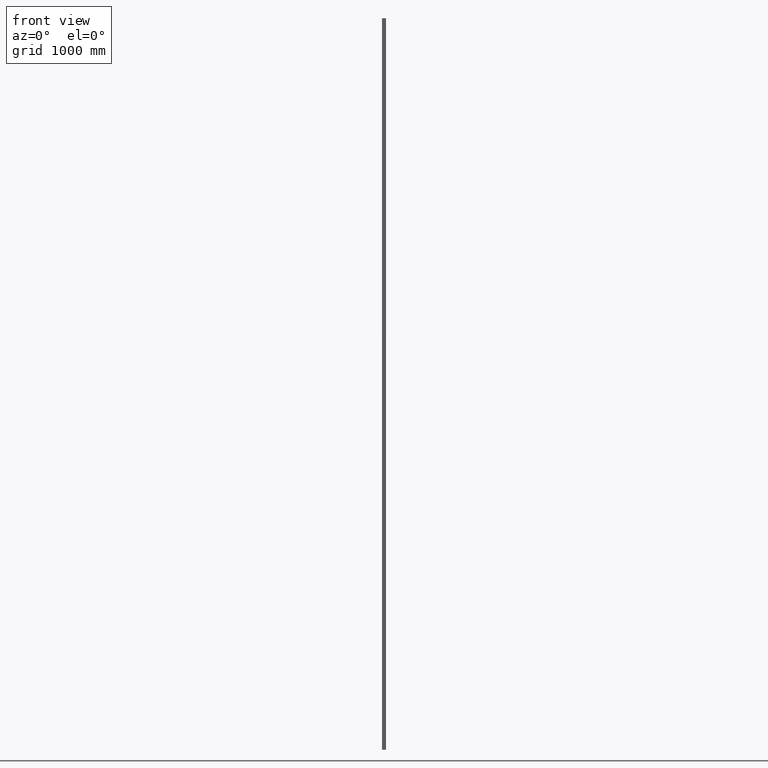
[diagram: clean part render]
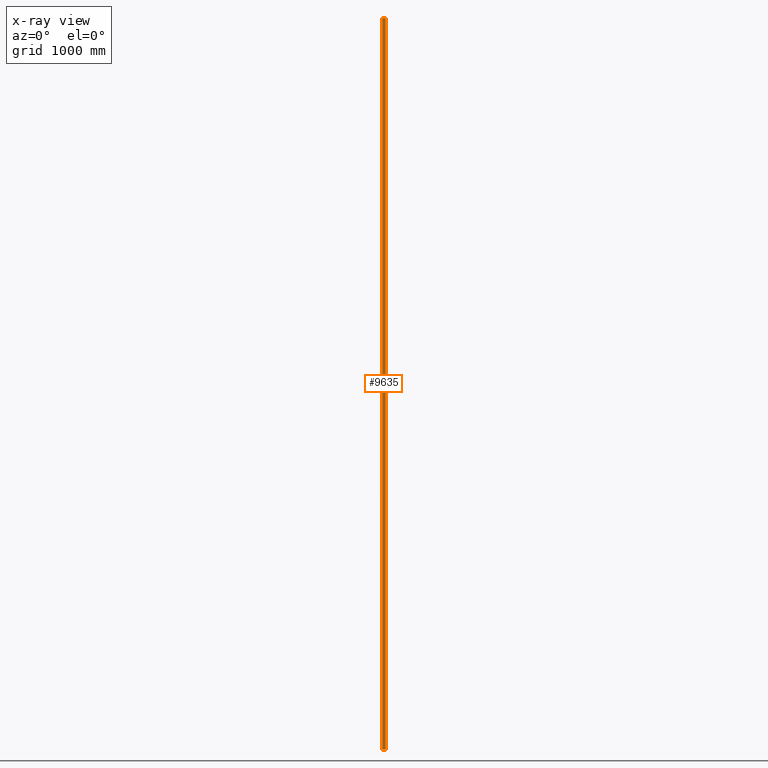
[diagram: x-ray — body ghosted, one internal face saturated and labeled with its STEP entity id]
A machine part, front view, then the same camera in x-ray: the body is ghosted and one INTERNAL B-rep face — a face not visible from any outside direction — is saturated and labeled: STEP entity #9635.
In plain terms, the highlighted planar face has unit normal (0, 1, 0).
Its self-contained STEP definition (entity closure, byte-faithful):
#275 = EDGE_LOOP ( 'NONE', ( #15222, #794, #10671, #9292 ) ) ;
#710 = CARTESIAN_POINT ( 'NONE',  ( -14.00000000000000400, 18.00000000000000400, 3000.000000000000000 ) ) ;
#794 = ORIENTED_EDGE ( 'NONE', *, *, #9960, .F. ) ;
#985 = VECTOR ( 'NONE', #9536, 1000.000000000000000 ) ;
#1367 = LINE ( 'NONE', #5394, #13982 ) ;
#2371 = VECTOR ( 'NONE', #15344, 1000.000000000000000 ) ;
#3085 = DIRECTION ( 'NONE',  ( 0.0000000000000000000, 1.000000000000000000, 0.0000000000000000000 ) ) ;
#3410 = FACE_OUTER_BOUND ( 'NONE', #275, .T. ) ;
#3460 = CARTESIAN_POINT ( 'NONE',  ( -14.00000000000000400, 18.00000000000000400, 3000.000000000000000 ) ) ;
#4771 = EDGE_CURVE ( 'NONE', #14117, #14558, #12469, .T. ) ;
#4962 = VERTEX_POINT ( 'NONE', #13725 ) ;
#5394 = CARTESIAN_POINT ( 'NONE',  ( -14.00000000000000400, 18.00000000000000400, -3000.000000000000000 ) ) ;
#5718 = DIRECTION ( 'NONE',  ( -0.0000000000000000000, -0.0000000000000000000, -1.000000000000000000 ) ) ;
#6431 = EDGE_CURVE ( 'NONE', #4962, #14581, #1367, .T. ) ;
#6871 = CARTESIAN_POINT ( 'NONE',  ( -14.00000000000000400, 18.00000000000000400, 3000.000000000000000 ) ) ;
#7872 = PLANE ( 'NONE',  #8696 ) ;
#8696 = AXIS2_PLACEMENT_3D ( 'NONE', #710, #3085, #13821 ) ;
#9292 = ORIENTED_EDGE ( 'NONE', *, *, #13795, .T. ) ;
#9536 = DIRECTION ( 'NONE',  ( 1.000000000000000000, 0.0000000000000000000, 0.0000000000000000000 ) ) ;
#9635 = ADVANCED_FACE ( 'NONE', ( #3410 ), #7872, .F. ) ;
#9726 = CARTESIAN_POINT ( 'NONE',  ( 13.99999999999999800, 18.00000000000000400, -3000.000000000000000 ) ) ;
#9960 = EDGE_CURVE ( 'NONE', #14558, #14581, #14563, .T. ) ;
#10589 = CARTESIAN_POINT ( 'NONE',  ( -14.00000000000000400, 18.00000000000000400, 3000.000000000000000 ) ) ;
#10671 = ORIENTED_EDGE ( 'NONE', *, *, #4771, .F. ) ;
#10951 = CARTESIAN_POINT ( 'NONE',  ( 13.99999999999999800, 18.00000000000000400, 3000.000000000000000 ) ) ;
#12469 = LINE ( 'NONE', #3460, #985 ) ;
#12839 = CARTESIAN_POINT ( 'NONE',  ( 13.99999999999999800, 18.00000000000000400, 3000.000000000000000 ) ) ;
#13445 = VECTOR ( 'NONE', #5718, 1000.000000000000000 ) ;
#13685 = DIRECTION ( 'NONE',  ( 1.000000000000000000, 0.0000000000000000000, 0.0000000000000000000 ) ) ;
#13725 = CARTESIAN_POINT ( 'NONE',  ( -14.00000000000000400, 18.00000000000000400, -3000.000000000000000 ) ) ;
#13795 = EDGE_CURVE ( 'NONE', #14117, #4962, #14990, .T. ) ;
#13821 = DIRECTION ( 'NONE',  ( 0.0000000000000000000, -0.0000000000000000000, 1.000000000000000000 ) ) ;
#13982 = VECTOR ( 'NONE', #13685, 1000.000000000000000 ) ;
#14117 = VERTEX_POINT ( 'NONE', #6871 ) ;
#14558 = VERTEX_POINT ( 'NONE', #10951 ) ;
#14563 = LINE ( 'NONE', #12839, #13445 ) ;
#14581 = VERTEX_POINT ( 'NONE', #9726 ) ;
#14990 = LINE ( 'NONE', #10589, #2371 ) ;
#15222 = ORIENTED_EDGE ( 'NONE', *, *, #6431, .T. ) ;
#15344 = DIRECTION ( 'NONE',  ( -0.0000000000000000000, -0.0000000000000000000, -1.000000000000000000 ) ) ;